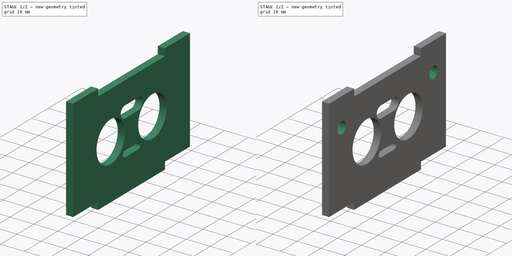
[diagram: build sequence overview — one tinted view per stage of 2, left to right]
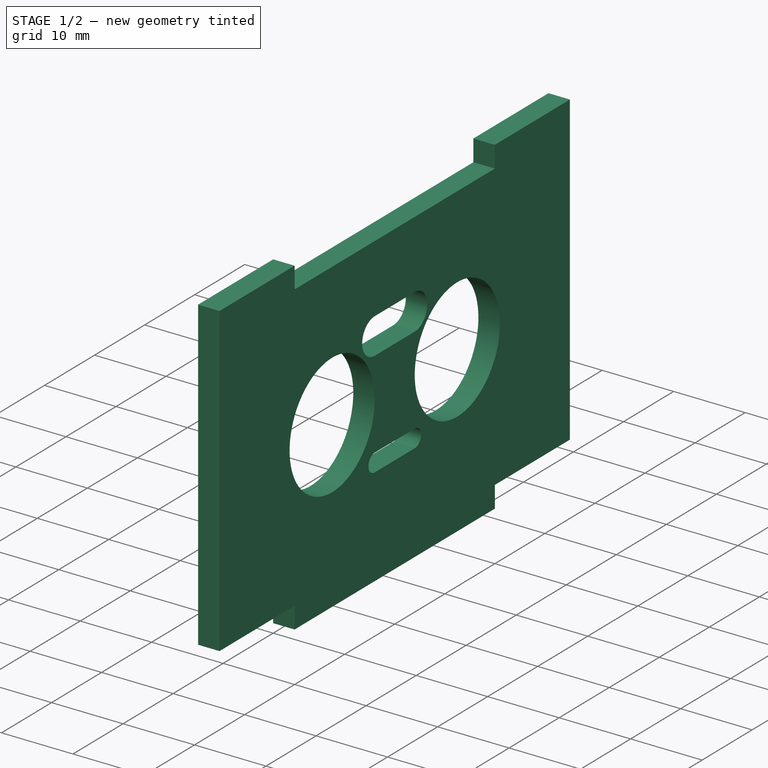
[diagram: stage 1 of 2 — iso view after this stage's code; geometry added in this stage tinted green]
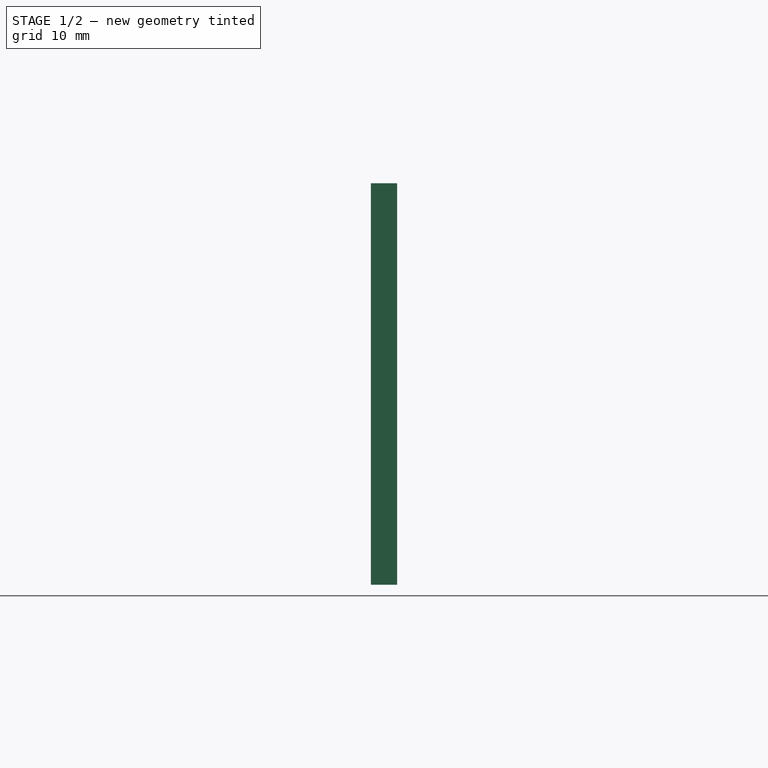
[diagram: stage 1 of 2 — front view after this stage's code; geometry added in this stage tinted green]
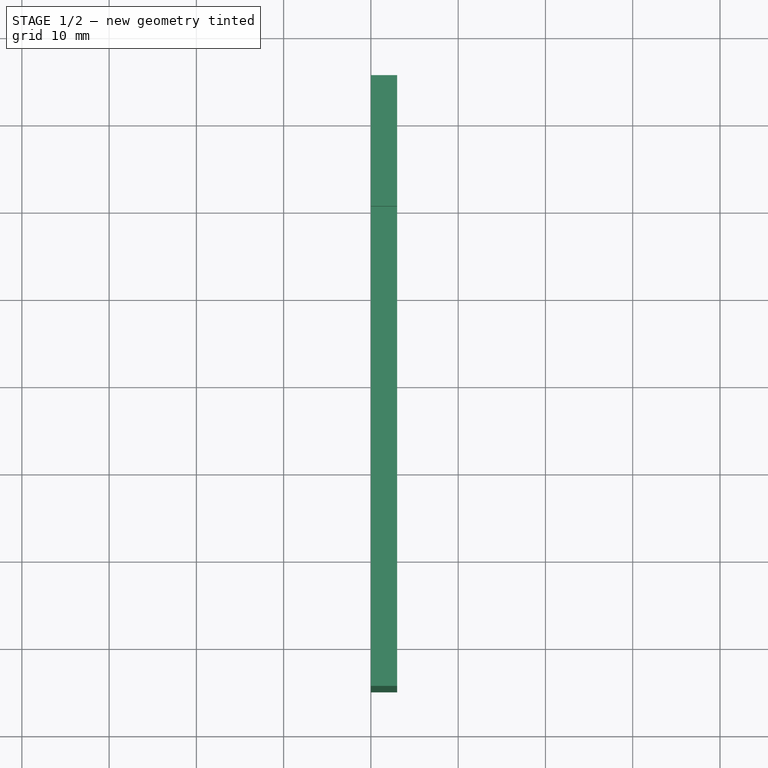
[diagram: stage 1 of 2 — top view after this stage's code; geometry added in this stage tinted green]
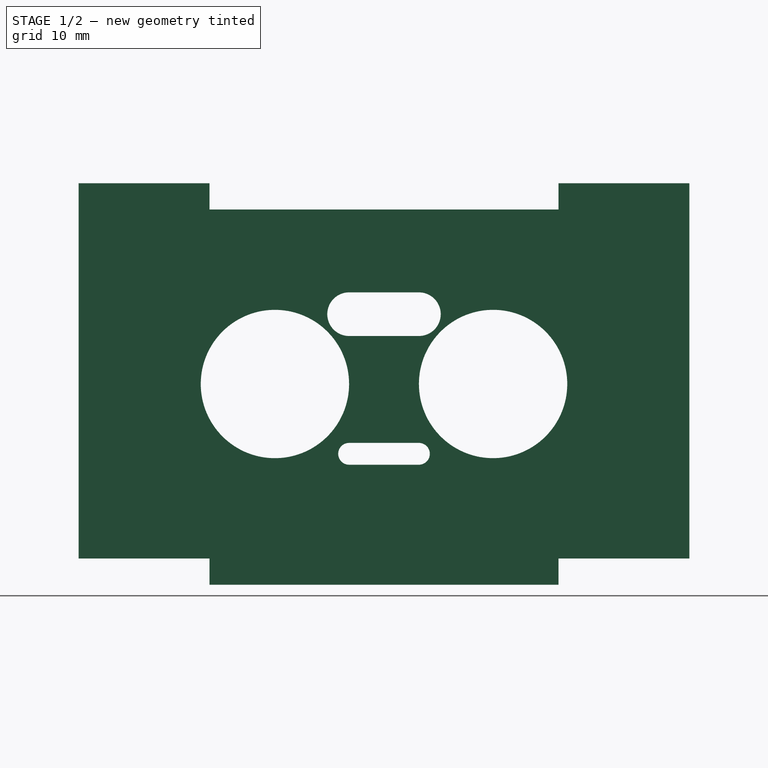
[diagram: stage 1 of 2 — right view after this stage's code; geometry added in this stage tinted green]
FCSTD DOCUMENT  (FreeCAD 0.15R4671 (Git))
Label: EduRoMAAFrente
License: CreativeCommons Attribution-ShareAlike
LicenseURL: http://creativecommons.org/licenses/by-sa/4.0/
objects: Sketcher::SketchObject×3, PartDesign::Pocket×2, Part::Part2DObjectPython×2, PartDesign::Pad×1
note: 11 computed .brp shape members not serialized (recipe doc carries the construction recipe); baked Part::Feature solids carry a one-line shape summary decoded from their .brp

FEATURE [Sketcher::SketchObject] Sketch007  label="SiluetaFrenteSketch"
  Placement = pos=(0,0,0) rot=(0.57735,0.57735,0.57735;2.0944rad)
  sketch-geometry (12):
    g0: LineSegment StartX=-35 StartY=43 StartZ=0 EndX=-20 EndY=43 EndZ=0
    g1: LineSegment StartX=-20 StartY=43 StartZ=0 EndX=-20 EndY=40 EndZ=0
    g2: LineSegment StartX=-20 StartY=40 StartZ=0 EndX=20 EndY=40 EndZ=0
    g3: LineSegment StartX=20 StartY=40 StartZ=0 EndX=20 EndY=43 EndZ=0
    g4: LineSegment StartX=20 StartY=43 StartZ=0 EndX=35 EndY=43 EndZ=0
    g5: LineSegment StartX=35 StartY=43 StartZ=0 EndX=35 EndY=0 EndZ=0
    g6: LineSegment StartX=35 StartY=0 StartZ=0 EndX=20 EndY=0 EndZ=0
    g7: LineSegment StartX=20 StartY=0 StartZ=0 EndX=20 EndY=-3 EndZ=0
    g8: LineSegment StartX=20 StartY=-3 StartZ=0 EndX=-20 EndY=-3 EndZ=0
    g9: LineSegment StartX=-20 StartY=-3 StartZ=0 EndX=-20 EndY=0 EndZ=0
    g10: LineSegment StartX=-20 StartY=0 StartZ=0 EndX=-35 EndY=0 EndZ=0
    g11: LineSegment StartX=-35 StartY=0 StartZ=0 EndX=-35 EndY=43 EndZ=0
  constraints (37):
    c: Horizontal(g0)
    c: Coincident(g0,g1)
    c: Vertical(g1)
    c: Coincident(g1,g2)
    c: Horizontal(g2)
    c: Coincident(g2,g3)
    c: Vertical(g3)
    c: Coincident(g3,g4)
    c: Horizontal(g4)
    c: Coincident(g4,g5)
    c: Vertical(g5)
    c: Coincident(g5,g6)
    c: Horizontal(g6)
    c: Coincident(g6,g7)
    c: Coincident(g7,g8)
    c: Horizontal(g8)
    c: Coincident(g8,g9)
    c: Vertical(g9)
    c: Coincident(g9,g10)
    c: Horizontal(g10)
    c: Coincident(g10,g11)
    c: Coincident(g11,g0)
    c: Vertical(g11)
    c: Vertical(g7)
    c: Equal(g0,g4)
    c: Equal(g4,g10)
    c: Equal(g10,g6)
    c: Equal(g1,g3)
    c: Symmetric(g1,g2,g-2)
    c: DistanceX(g0) = 15
    c: DistanceY(g9) = 3
    c: DistanceX(g8) = -40
    c: DistanceY(g5) = -43
    c: Equal(g7,g9)
    c: PointOnObject(g9,g-1)
    c: Equal(g1,g3)
    c: Equal(g3,g9)
FEATURE [PartDesign::Pad] Pad002  label="FrenteRelleno"
  Length = 3
  Length2 = 100
  Placement = pos=(0,0,0) rot=(0.57735,0.57735,0.57735;2.0944rad)
  Sketch = -> Sketch007
  Type = 0
FEATURE [Sketcher::SketchObject] Sketch008  label="SonarSketch"
  ExternalGeometry = -> [Pad002]
  Placement = pos=(3,0,0) rot=(0.57735,0.57735,0.57735;2.0944rad)
  Support = -> Pad002 [Face14]
  sketch-geometry (10):
    g0: Circle CenterX=-12.5 CenterY=20 CenterZ=0 NormalX=0 NormalY=0 NormalZ=1 Radius=8.5
    g1: Circle CenterX=12.5 CenterY=20 CenterZ=0 NormalX=0 NormalY=0 NormalZ=1 Radius=8.5
    g2: LineSegment StartX=-4 StartY=30.5 StartZ=0 EndX=4 EndY=30.5 EndZ=0
    g3: LineSegment StartX=-4 StartY=25.5 StartZ=0 EndX=4 EndY=25.5 EndZ=0
    g4: LineSegment StartX=-4 StartY=13.25 StartZ=0 EndX=4 EndY=13.25 EndZ=0
    g5: LineSegment StartX=-4 StartY=10.75 StartZ=0 EndX=4 EndY=10.75 EndZ=0
    g6: ArcOfCircle CenterX=-4 CenterY=12 CenterZ=0 NormalX=0 NormalY=0 NormalZ=1 Radius=1.25 StartAngle=1.5708 EndAngle=4.71239
    g7: ArcOfCircle CenterX=-4 CenterY=28 CenterZ=0 NormalX=0 NormalY=0 NormalZ=1 Radius=2.5 StartAngle=1.5708 EndAngle=4.71239
    g8: ArcOfCircle CenterX=4 CenterY=28 CenterZ=0 NormalX=0 NormalY=0 NormalZ=1 Radius=2.5 StartAngle=4.71239 EndAngle=7.85398
    g9: ArcOfCircle CenterX=4 CenterY=12 CenterZ=0 NormalX=0 NormalY=0 NormalZ=1 Radius=1.25 StartAngle=4.71239 EndAngle=7.85398
  constraints (25):
    c: Symmetric(g1,g0,g-2)
    c: Equal(g0,g1)
    c: Radius(g1) = 8.5
    c: Tangent(g4,g6) = 1.5708
    c: Tangent(g5,g6) = -1.5708
    c: Tangent(g2,g7) = 1.5708
    c: Tangent(g3,g7) = -1.5708
    c: Tangent(g2,g8) = 1.5708
    c: Tangent(g3,g8) = -1.5708
    c: Tangent(g4,g9) = 1.5708
    c: Tangent(g5,g9) = -1.5708
    c: Horizontal(g2)
    c: Horizontal(g3)
    c: Horizontal(g5)
    c: Horizontal(g4)
    c: Symmetric(g2,g2,g-2)
    c: Symmetric(g5,g5,g-2)
    c: Radius(g8) = 2.5
    c: Radius(g9) = 1.25
    c: DistanceX(g2) = 8
    c: DistanceX(g5) = 8
    c: DistanceY(g0,g7) = 8
    c: DistanceY(g7,g6) = -16
    c: DistanceY(g0,g-3) = -20
    c: DistanceX(g-1,g0) = -12.5
FEATURE [PartDesign::Pocket] Pocket005  label="FrenteSonar"
  Length = 5
  Placement = pos=(0,0,0) rot=(0.57735,0.57735,0.57735;2.0944rad)
  Sketch = -> Sketch008
  Type = 1
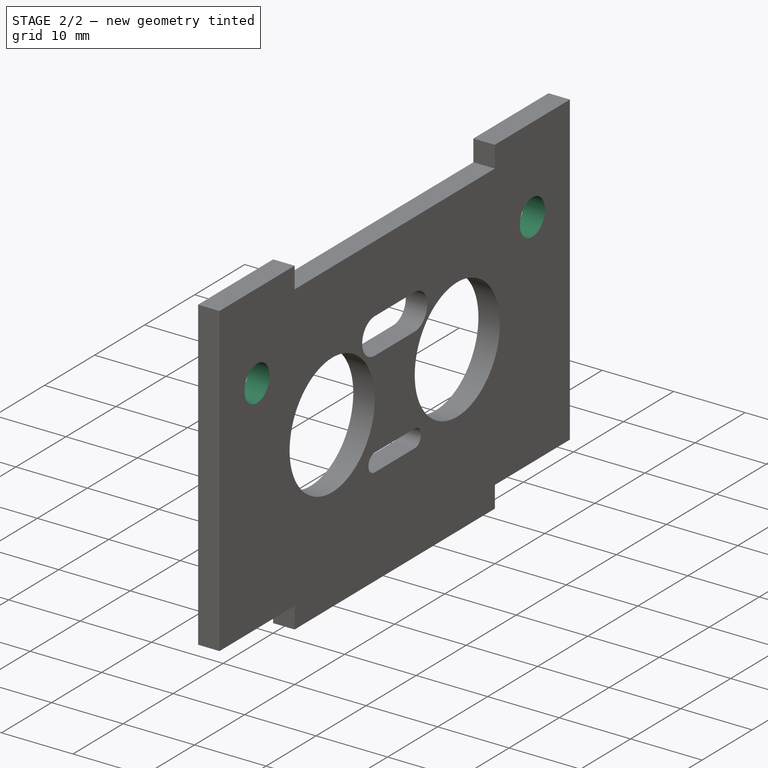
[diagram: stage 2 of 2 — iso view after this stage's code; geometry added in this stage tinted green]
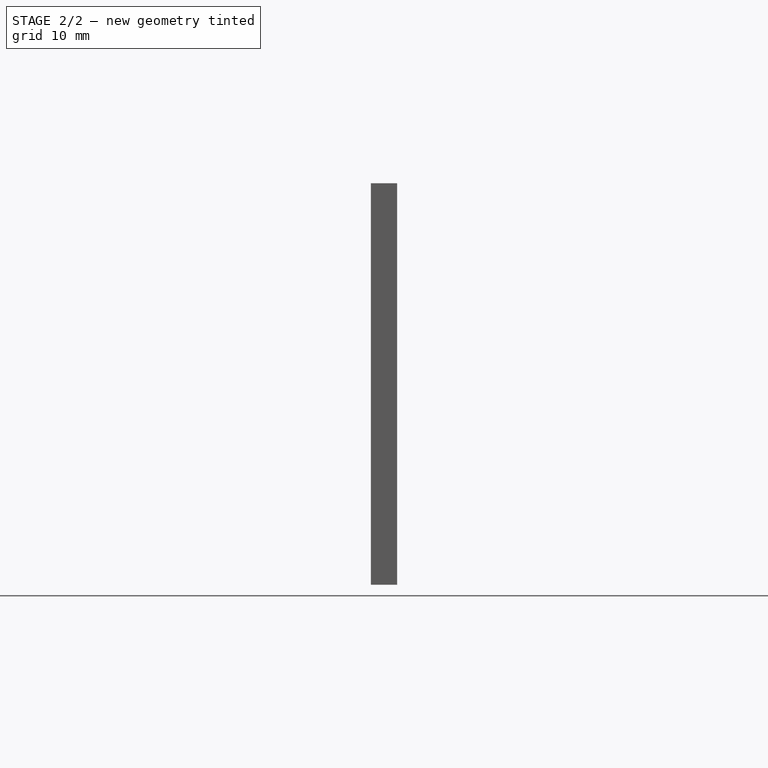
[diagram: stage 2 of 2 — front view after this stage's code; geometry added in this stage tinted green]
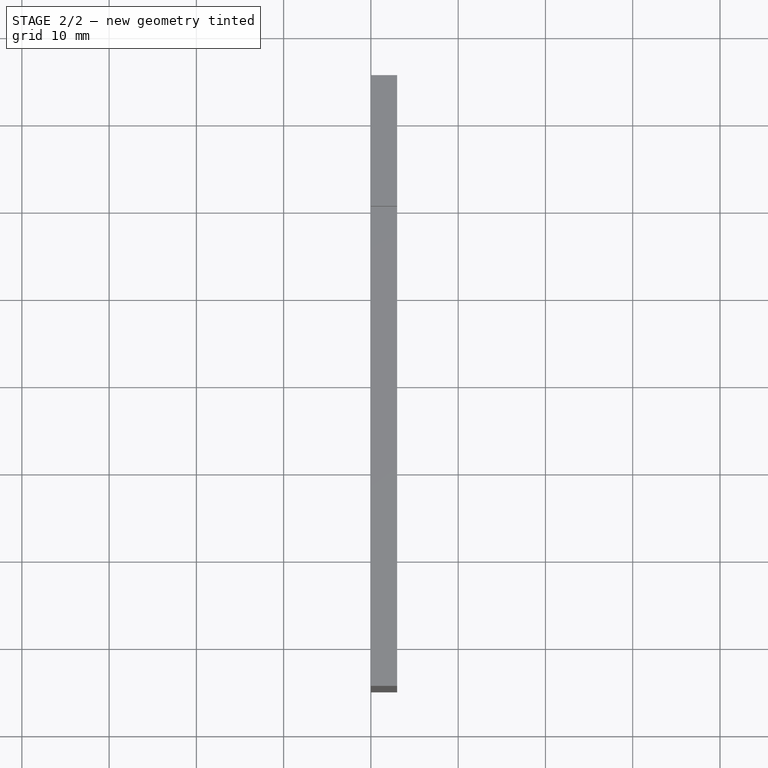
[diagram: stage 2 of 2 — top view after this stage's code; geometry added in this stage tinted green]
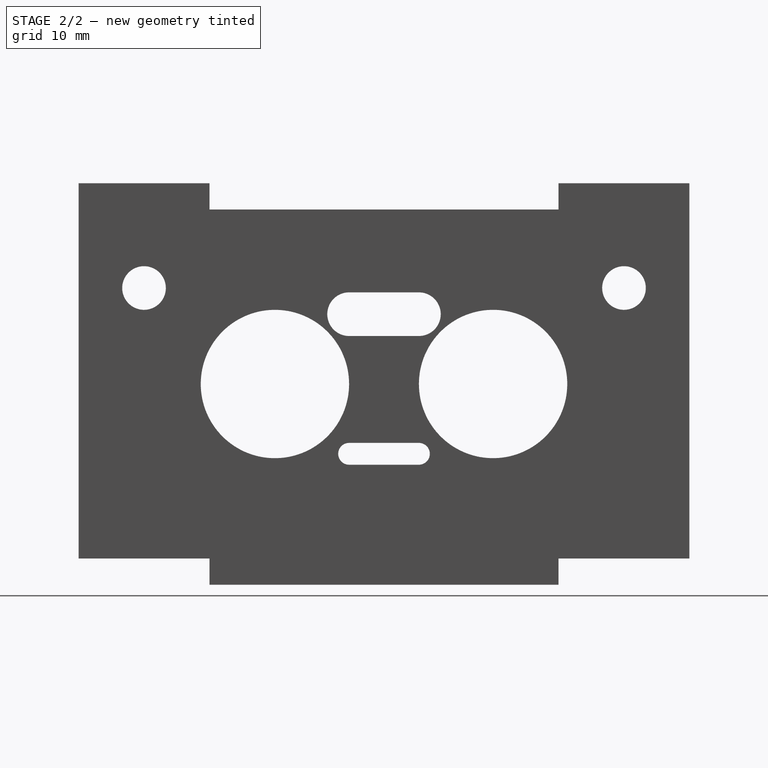
[diagram: stage 2 of 2 — right view after this stage's code; geometry added in this stage tinted green]
FEATURE [Sketcher::SketchObject] Sketch009  label="LEDSketch"
  ExternalGeometry = -> [Pocket005]
  Placement = pos=(3,0,0) rot=(0.57735,0.57735,0.57735;2.0944rad)
  Support = -> Pocket005 [Face5]
  sketch-geometry (2):
    g0: Circle CenterX=-27.5 CenterY=31 CenterZ=0 NormalX=0 NormalY=0 NormalZ=1 Radius=2.5
    g1: Circle CenterX=27.5 CenterY=31 CenterZ=0 NormalX=0 NormalY=0 NormalZ=1 Radius=2.5
  constraints (5):
    c: Equal(g0,g1)
    c: Symmetric(g0,g1,g-2)
    c: DistanceY(g0,g-3) = 12
    c: DistanceX(g0,g-3) = -7.5
    c: Radius(g1) = 2.5
FEATURE [PartDesign::Pocket] Pocket006  label="FrentetSonarYLED"
  Length = 5
  Placement = pos=(0,0,0) rot=(0.57735,0.57735,0.57735;2.0944rad)
  Sketch = -> Sketch009
  Type = 1
FEATURE [Part::Part2DObjectPython] Shape2DView  label="FrontSonarYLED_corte2D"  # Draft 2D object (typed FeaturePython)
  Base = -> Pocket006
  HiddenLines = false
  Projection = (1,0,0)
  ProjectionMode = 0
  SegmentLength = 0.05
  Tessellation = false
FEATURE [Part::Part2DObjectPython] Shape2DView001  label="FrenteSonar_corte2D"  # Draft 2D object (typed FeaturePython)
  Base = -> Pocket005
  HiddenLines = false
  Projection = (1,0,0)
  ProjectionMode = 0
  SegmentLength = 0.05
  Tessellation = false
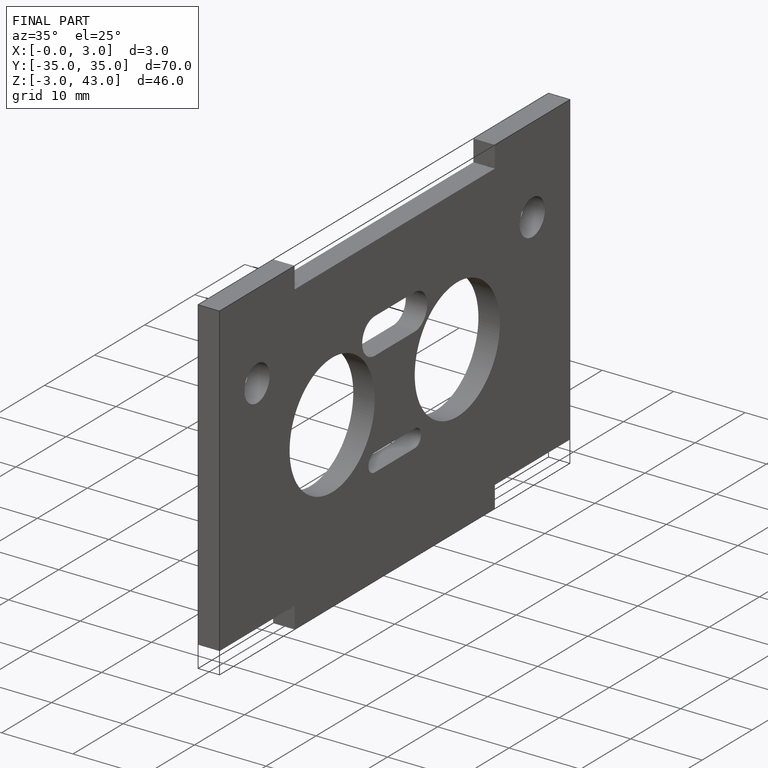
[diagram: finished part — iso view with bounding-box wireframe]
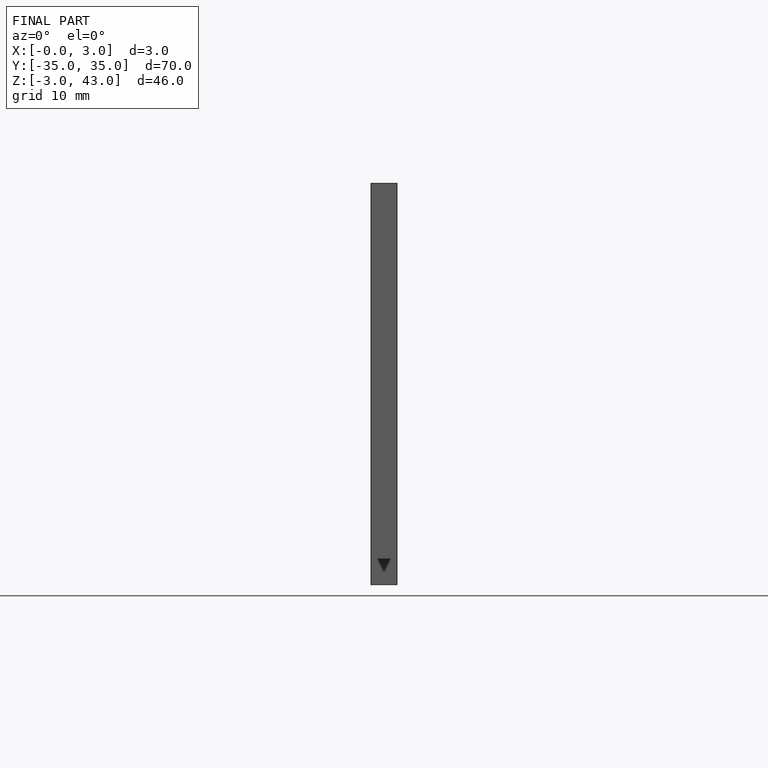
[diagram: finished part — front view with bounding-box wireframe]
